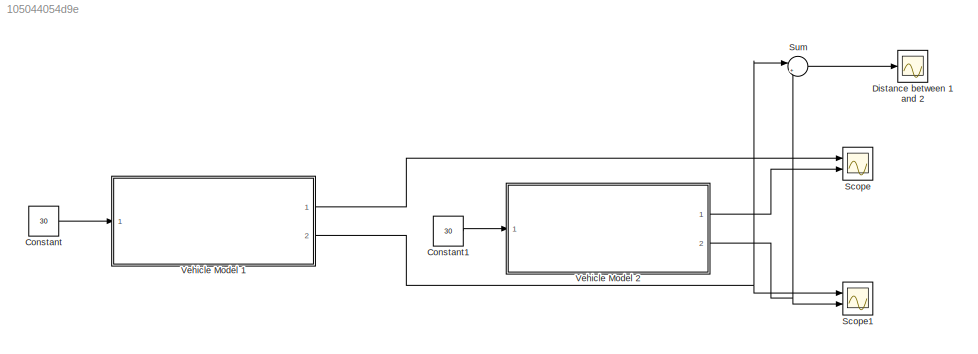
MODEL slx_105044054d9e
KIND model
CONFIG AbsTol = auto
CONFIG EnableMultiTasking = off
CONFIG FixedStep = auto
CONFIG MaxStep = auto
CONFIG MinStep = auto
CONFIG RelTol = 1e-3
CONFIG SampleTimeConstraint = Unconstrained
CONFIG Solver = VariableStepAuto
CONFIG SolverName = VariableStepAuto
CONFIG StartTime = 0.0
CONFIG StopTime = 20
BLOCK [Constant] Constant
  Value = 30
BLOCK [Constant] Constant1
  Value = 30
BLOCK [Scope] Distance between 1 and 2 
  Floating = off
  NumInputPorts = 1
  Ports = [1]
  ScopeSpecificationString = Simulink.scopes.TimeScopeBlockCfg('CurrentConfiguration', extmgr.ConfigurationSet(extmgr.Configuration('Core','General UI',true),extmgr.Configuration('Core','Source UI',true),extmgr.Configuration('Sources','WiredSimulink',true,'DataLoggingVariableName','ScopeData2'),extmgr.Configuration('Visuals','Time Domain',true,'SerializedDisplays',{struct('MinYLimReal','-40.2346','MaxYLimReal','60.02607','YLa...<+1366ch>
BLOCK [Scope] Scope
  Floating = off
  NumInputPorts = 2
  Ports = [2]
  ScopeSpecificationString = Simulink.scopes.TimeScopeBlockCfg('CurrentConfiguration', extmgr.ConfigurationSet(extmgr.Configuration('Core','General UI',true),extmgr.Configuration('Core','Source UI',true),extmgr.Configuration('Sources','WiredSimulink',true),extmgr.Configuration('Visuals','Time Domain',true,'SerializedDisplays',{struct('MinYLimReal','7.48327','MaxYLimReal','32.65053','YLabelReal','','MinYLimMag','7.48327','MaxY...<+1359ch>
BLOCK [Scope] Scope1
  Floating = off
  NumInputPorts = 2
  Ports = [2]
  ScopeSpecificationString = Simulink.scopes.TimeScopeBlockCfg('CurrentConfiguration', extmgr.ConfigurationSet(extmgr.Configuration('Core','General UI',true),extmgr.Configuration('Core','Source UI',true),extmgr.Configuration('Sources','WiredSimulink',true,'DataLoggingVariableName','ScopeData1'),extmgr.Configuration('Visuals','Time Domain',true,'SerializedDisplays',{struct('MinYLimReal','-21.28124','MaxYLimReal','691.53118','Y...<+1406ch>
BLOCK [Sum] Sum
  IconShape = round
  InputSameDT = off
  Inputs = |+-
  OutDataTypeStr = Inherit: Inherit via internal rule
  Ports = [2, 1]
  SaturateOnIntegerOverflow = off
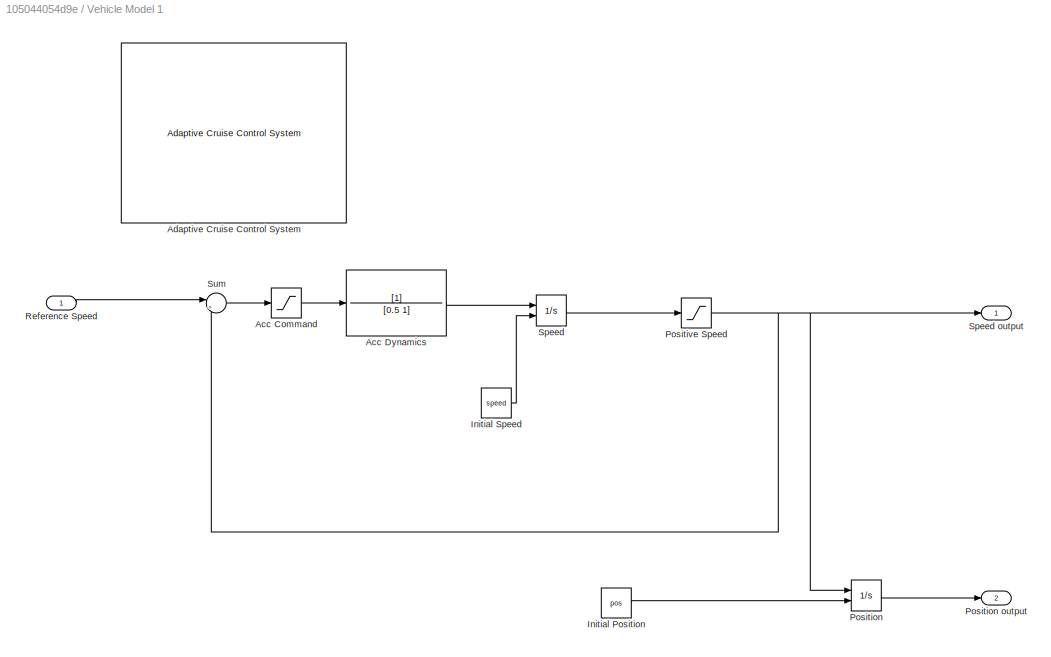
BLOCK [SubSystem] Vehicle Model 1
  Ports = [1, 2]
  RequestExecContextInheritance = off
BLOCK [Saturate] Vehicle Model 1/Acc Command
  InputPortMap = u0
  LowerLimit = -3
  Ports = [1, 1]
  UpperLimit = 2
BLOCK [TransferFcn] Vehicle Model 1/Acc Dynamics 
  Denominator = [0.5 1]
BLOCK [Reference] Vehicle Model 1/Adaptive Cruise Control System  REF=mpcadaslib/Adaptive Cruise Control System
  Ports = [5, 1]
  SourceBlock = mpcadaslib/Adaptive Cruise Control System
  SourceProductBaseCode = MP
  SourceProductName = Model Predictive Control Toolbox
  SourceType = Adaptive cruise control (ACC) system
BLOCK [Constant] Vehicle Model 1/Initial Position
  Value = pos
BLOCK [Constant] Vehicle Model 1/Initial Speed 
  Value = speed
BLOCK [Integrator] Vehicle Model 1/Position
  InitialConditionSource = external
  Ports = [2, 1]
BLOCK [Outport] Vehicle Model 1/Position output
  IconDisplay = Port number
  Port = 2
BLOCK [Saturate] Vehicle Model 1/Positive Speed
  InputPortMap = u0
  LowerLimit = 0
  Ports = [1, 1]
  UpperLimit = inf
BLOCK [Inport] Vehicle Model 1/Reference Speed 
  IconDisplay = Port number
BLOCK [Integrator] Vehicle Model 1/Speed
  InitialConditionSource = external
  Ports = [2, 1]
BLOCK [Outport] Vehicle Model 1/Speed output 
  IconDisplay = Port number
BLOCK [Sum] Vehicle Model 1/Sum
  IconShape = round
  InputSameDT = off
  Inputs = |+-
  OutDataTypeStr = Inherit: Inherit via internal rule
  Ports = [2, 1]
  SaturateOnIntegerOverflow = off
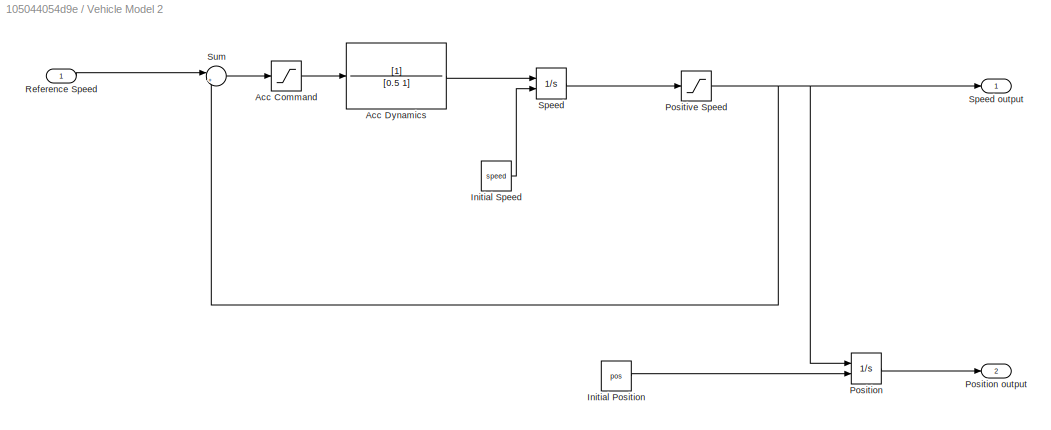
BLOCK [SubSystem] Vehicle Model 2
  Ports = [1, 2]
  RequestExecContextInheritance = off
BLOCK [Saturate] Vehicle Model 2/Acc Command
  InputPortMap = u0
  LowerLimit = -3
  Ports = [1, 1]
  UpperLimit = 2
BLOCK [TransferFcn] Vehicle Model 2/Acc Dynamics 
  Denominator = [0.5 1]
BLOCK [Constant] Vehicle Model 2/Initial Position
  Value = pos
BLOCK [Constant] Vehicle Model 2/Initial Speed 
  Value = speed
BLOCK [Integrator] Vehicle Model 2/Position
  InitialConditionSource = external
  Ports = [2, 1]
BLOCK [Outport] Vehicle Model 2/Position output
  IconDisplay = Port number
  Port = 2
BLOCK [Saturate] Vehicle Model 2/Positive Speed
  InputPortMap = u0
  LowerLimit = 0
  Ports = [1, 1]
  UpperLimit = inf
BLOCK [Inport] Vehicle Model 2/Reference Speed 
  IconDisplay = Port number
BLOCK [Integrator] Vehicle Model 2/Speed
  InitialConditionSource = external
  Ports = [2, 1]
BLOCK [Outport] Vehicle Model 2/Speed output 
  IconDisplay = Port number
BLOCK [Sum] Vehicle Model 2/Sum
  IconShape = round
  InputSameDT = off
  Inputs = |+-
  OutDataTypeStr = Inherit: Inherit via internal rule
  Ports = [2, 1]
  SaturateOnIntegerOverflow = off
LINE Constant1:1 -> Vehicle Model 2:1
LINE Constant:1 -> Vehicle Model 1:1
LINE Sum:1 -> Distance between 1 and 2 :1
LINE Vehicle Model 1/Acc Command:1 -> Vehicle Model 1/Acc Dynamics :1
LINE Vehicle Model 1/Acc Dynamics :1 -> Vehicle Model 1/Speed:1
LINE Vehicle Model 1/Initial Position:1 -> Vehicle Model 1/Position:2
LINE Vehicle Model 1/Initial Speed :1 -> Vehicle Model 1/Speed:2
LINE Vehicle Model 1/Position:1 -> Vehicle Model 1/Position output:1
NET Vehicle Model 1/Positive Speed:1 -> Vehicle Model 1/Position:1, Vehicle Model 1/Speed output :1, Vehicle Model 1/Sum:2
LINE Vehicle Model 1/Reference Speed :1 -> Vehicle Model 1/Sum:1
LINE Vehicle Model 1/Speed:1 -> Vehicle Model 1/Positive Speed:1
LINE Vehicle Model 1/Sum:1 -> Vehicle Model 1/Acc Command:1
LINE Vehicle Model 1:1 -> Scope:1
NET Vehicle Model 1:2 -> Scope1:1, Sum:1
LINE Vehicle Model 2/Acc Command:1 -> Vehicle Model 2/Acc Dynamics :1
LINE Vehicle Model 2/Acc Dynamics :1 -> Vehicle Model 2/Speed:1
LINE Vehicle Model 2/Initial Position:1 -> Vehicle Model 2/Position:2
LINE Vehicle Model 2/Initial Speed :1 -> Vehicle Model 2/Speed:2
LINE Vehicle Model 2/Position:1 -> Vehicle Model 2/Position output:1
NET Vehicle Model 2/Positive Speed:1 -> Vehicle Model 2/Position:1, Vehicle Model 2/Speed output :1, Vehicle Model 2/Sum:2
LINE Vehicle Model 2/Reference Speed :1 -> Vehicle Model 2/Sum:1
LINE Vehicle Model 2/Speed:1 -> Vehicle Model 2/Positive Speed:1
LINE Vehicle Model 2/Sum:1 -> Vehicle Model 2/Acc Command:1
LINE Vehicle Model 2:1 -> Scope:2
NET Vehicle Model 2:2 -> Scope1:2, Sum:2
note: NET lines group one-source signal fan-out (src -> all destinations, sorted); 1:1 wires keep LINE
